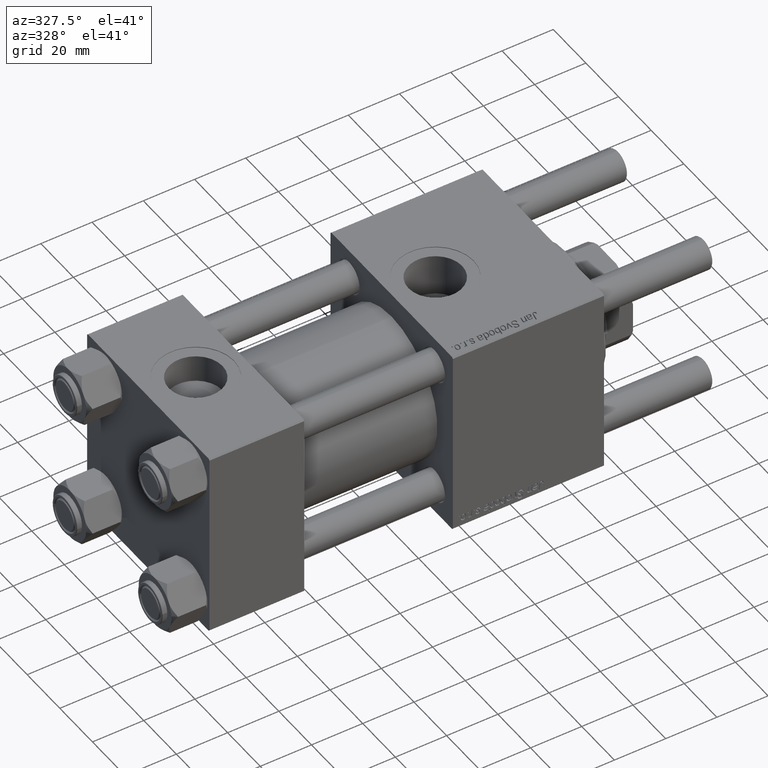
[diagram: clean part render]
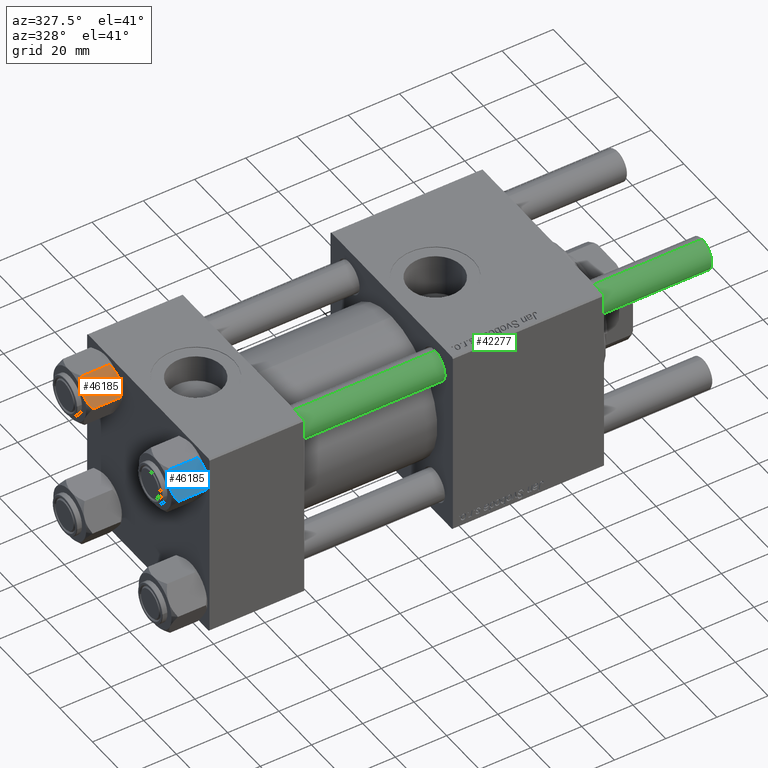
[diagram: same view with three faces highlighted in distinct colors, each labeled with its STEP entity id]
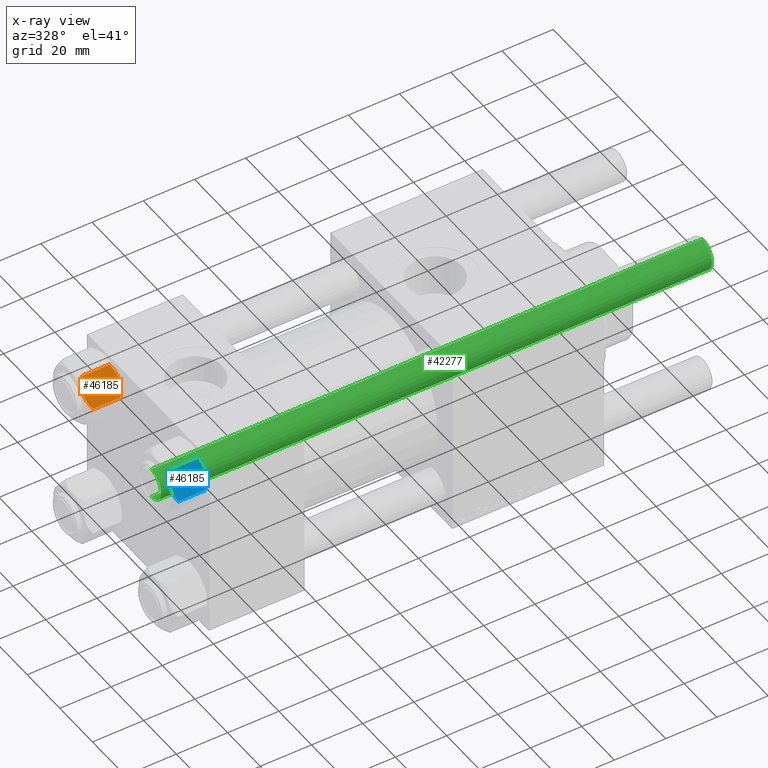
[diagram: x-ray of the same camera — body ghosted, the three highlighted faces saturated]
A machine part, auxiliary view with three faces highlighted in distinct colors.
The next image is the same camera in x-ray (body ghosted, the three faces saturated) — at least one of them is partly hidden behind the body in this view.
Their STEP definitions:

[orange] entity #46185 — the highlighted planar face has unit normal (0, 0.8198, -0.5726).
#839 = CARTESIAN_POINT ( 'NONE',  ( -6.731401448974990487, -8.467301068182912616, -13.28585617404753627 ) ) ;
#1386 = EDGE_CURVE ( 'NONE', #32281, #53331, #46654, .T. ) ;
#2322 = VERTEX_POINT ( 'NONE', #13940 ) ;
#4976 = CARTESIAN_POINT ( 'NONE',  ( -8.715000000000005187, -5.031607595987585668, -14.00000000000000000 ) ) ;
#6049 = EDGE_CURVE ( 'NONE', #29025, #39398, #32756, .T. ) ;
#8047 = DIRECTION ( 'NONE',  ( 0.8660254037844390407, 0.4999999999999995004, 0.000000000000000000 ) ) ;
#8597 = VECTOR ( 'NONE', #11919, 1000.000000000000000 ) ;
#10403 = CARTESIAN_POINT ( 'NONE',  ( -9.220295946303432189, -4.156409344131445138, -14.00000000000000711 ) ) ;
#11377 = CARTESIAN_POINT ( 'NONE',  ( -6.733375043383497349, -8.463882702393840773, -0.7114554706434500497 ) ) ;
#11919 = DIRECTION ( 'NONE',  ( -0.000000000000000000, -0.000000000000000000, 1.000000000000000000 ) ) ;
#12915 = EDGE_CURVE ( 'NONE', #53331, #2322, #45262, .T. ) ;
#13368 = CARTESIAN_POINT ( 'NONE',  ( -11.16445427487471598, -0.7890283410877912962, -1.101239082899529764 ) ) ;
#13940 = CARTESIAN_POINT ( 'NONE',  ( -8.715000000000005187, -5.031607595987585668, 0.000000000000000000 ) ) ;
#14861 = CARTESIAN_POINT ( 'NONE',  ( -7.455303369716807182, -7.213466161761382445, -13.69973261901325934 ) ) ;
#14946 = AXIS2_PLACEMENT_3D ( 'NONE', #47340, #8047, #43029 ) ;
#15559 = CARTESIAN_POINT ( 'NONE',  ( -10.69662495661650325, -1.599332489581326122, -13.28854452935654962 ) ) ;
#15969 = CARTESIAN_POINT ( 'NONE',  ( -7.713000053756306151, -6.767122412062949621, -0.1545239700039825748 ) ) ;
#17048 = VERTEX_POINT ( 'NONE', #23287 ) ;
#18800 = B_SPLINE_CURVE_WITH_KNOTS ( 'NONE', 3,
 ( #49694, #10403, #23595, #15559, #54826, #42221 ),
 .UNSPECIFIED., .F., .F.,
 ( 4, 2, 4 ),
 ( 0.006022845781655597648, 0.009013049135303643697, 0.01200325248895169061 ),
 .UNSPECIFIED. ) ;
#19437 = CARTESIAN_POINT ( 'NONE',  ( -6.265545725125286403, -9.274186850887383926, -12.89876091710047135 ) ) ;
#20519 = ORIENTED_EDGE ( 'NONE', *, *, #53286, .T. ) ;
#20565 = ORIENTED_EDGE ( 'NONE', *, *, #1386, .F. ) ;
#20952 = FACE_OUTER_BOUND ( 'NONE', #43835, .T. ) ;
#21109 = CARTESIAN_POINT ( 'NONE',  ( -11.61999999999999922, 6.288644352490894150E-15, -14.00000000000000000 ) ) ;
#22212 = CARTESIAN_POINT ( 'NONE',  ( -11.61999999999999922, 6.301834029662224111E-15, -1.556784808024812117 ) ) ;
#23287 = CARTESIAN_POINT ( 'NONE',  ( -5.810000000000000497, -10.06321519197517844, -1.556784808024815225 ) ) ;
#23394 = CARTESIAN_POINT ( 'NONE',  ( -10.69859855102501101, -1.595914123792257389, -0.7141438259524618415 ) ) ;
#23595 = CARTESIAN_POINT ( 'NONE',  ( -9.716999946243696229, -3.296092779912219495, -13.84547602999602134 ) ) ;
#24961 = ORIENTED_EDGE ( 'NONE', *, *, #28376, .F. ) ;
#26937 = CARTESIAN_POINT ( 'NONE',  ( -8.460569896449618099, -5.472293462311855095, -14.00000000000000355 ) ) ;
#27143 = CARTESIAN_POINT ( 'NONE',  ( -11.61999999999999922, 6.301834029662224111E-15, -1.556784808024812117 ) ) ;
#28376 = EDGE_CURVE ( 'NONE', #39398, #32281, #18800, .T. ) ;
#28870 = CARTESIAN_POINT ( 'NONE',  ( -6.265018354709778414, -9.275100283241449972, -1.101766453314953820 ) ) ;
#28872 = ORIENTED_EDGE ( 'NONE', *, *, #37620, .F. ) ;
#29025 = VERTEX_POINT ( 'NONE', #35103 ) ;
#29148 = CARTESIAN_POINT ( 'NONE',  ( -8.715000000000005187, -5.031607595987585668, 0.000000000000000000 ) ) ;
#29843 = PLANE ( 'NONE',  #14946 ) ;
#30865 = CARTESIAN_POINT ( 'NONE',  ( -9.729165168613651105, -3.275021996682077052, -0.1903979688073393906 ) ) ;
#31533 = CARTESIAN_POINT ( 'NONE',  ( -8.715000000000005187, -5.031607595987585668, -14.00000000000000000 ) ) ;
#32082 = CARTESIAN_POINT ( 'NONE',  ( -7.700834831386345058, -6.788193195293090731, -13.80960203119265906 ) ) ;
#32281 = VERTEX_POINT ( 'NONE', #56372 ) ;
#32756 = B_SPLINE_CURVE_WITH_KNOTS ( 'NONE', 3,
 ( #40960, #19437, #839, #14861, #32082, #50131, #26937, #31533 ),
 .UNSPECIFIED., .F., .F.,
 ( 4, 2, 2, 4 ),
 ( 2.544312114906334931E-07, 0.003011550106433545128, 0.004517197944044571388, 0.006022845781655597648 ),
 .UNSPECIFIED. ) ;
#33770 = VECTOR ( 'NONE', #37465, 1000.000000000000000 ) ;
#35103 = CARTESIAN_POINT ( 'NONE',  ( -5.810000000000000497, -10.06321519197517844, -12.44321519197518455 ) ) ;
#37450 = B_SPLINE_CURVE_WITH_KNOTS ( 'NONE', 3,
 ( #29148, #42057, #15969, #11377, #28870, #51225 ),
 .UNSPECIFIED., .F., .F.,
 ( 4, 2, 4 ),
 ( 0.006022845781655587240, 0.009013049135303635023, 0.01200325248895168541 ),
 .UNSPECIFIED. ) ;
#37465 = DIRECTION ( 'NONE',  ( -0.000000000000000000, -0.000000000000000000, 1.000000000000000000 ) ) ;
#37620 = EDGE_CURVE ( 'NONE', #2322, #17048, #37450, .T. ) ;
#39398 = VERTEX_POINT ( 'NONE', #4976 ) ;
#39745 = CARTESIAN_POINT ( 'NONE',  ( -9.974696630283188981, -2.849749030213787560, -0.3002673809867339449 ) ) ;
#40960 = CARTESIAN_POINT ( 'NONE',  ( -5.810000000000000497, -10.06321519197517844, -12.44321519197518455 ) ) ;
#42057 = CARTESIAN_POINT ( 'NONE',  ( -8.209704053696569304, -5.906805847843719981, 4.553649124439113890E-15 ) ) ;
#42221 = CARTESIAN_POINT ( 'NONE',  ( -11.61999999999999922, 6.270720075510426383E-15, -12.44321519197518811 ) ) ;
#43029 = DIRECTION ( 'NONE',  ( -0.4999999999999994449, 0.8660254037844389297, 0.000000000000000000 ) ) ;
#43835 = EDGE_LOOP ( 'NONE', ( #55655, #20519, #28872, #53303, #20565, #24961 ) ) ;
#44350 = CARTESIAN_POINT ( 'NONE',  ( -9.227666995912100489, -4.143642311704119230, -0.03994118060690584476 ) ) ;
#45262 = B_SPLINE_CURVE_WITH_KNOTS ( 'NONE', 3,
 ( #27143, #13368, #23394, #39745, #30865, #44350, #52926, #48357 ),
 .UNSPECIFIED., .F., .F.,
 ( 4, 2, 2, 4 ),
 ( 2.544312114899214560E-07, 0.003011550106433539924, 0.004517197944044563582, 0.006022845781655587240 ),
 .UNSPECIFIED. ) ;
#46185 = ADVANCED_FACE ( 'NONE', ( #20952 ), #29843, .F. ) ;
#46654 = LINE ( 'NONE', #21109, #33770 ) ;
#47340 = CARTESIAN_POINT ( 'NONE',  ( -5.810000000000000497, -10.06321519197517844, -14.00000000000000000 ) ) ;
#48357 = CARTESIAN_POINT ( 'NONE',  ( -8.715000000000005187, -5.031607595987585668, 0.000000000000000000 ) ) ;
#49694 = CARTESIAN_POINT ( 'NONE',  ( -8.715000000000005187, -5.031607595987585668, -14.00000000000000000 ) ) ;
#50131 = CARTESIAN_POINT ( 'NONE',  ( -8.202333004087901003, -5.919572880271046778, -13.96005881939309390 ) ) ;
#51205 = CARTESIAN_POINT ( 'NONE',  ( -5.810000000000000497, -10.06321519197517844, -14.00000000000000000 ) ) ;
#51225 = CARTESIAN_POINT ( 'NONE',  ( -5.810000000000000497, -10.06321519197517844, -1.556784808024815225 ) ) ;
#52926 = CARTESIAN_POINT ( 'NONE',  ( -8.969430103550381617, -4.590921729663306472, 4.863663183134191758E-15 ) ) ;
#53286 = EDGE_CURVE ( 'NONE', #29025, #17048, #55505, .T. ) ;
#53303 = ORIENTED_EDGE ( 'NONE', *, *, #12915, .F. ) ;
#53331 = VERTEX_POINT ( 'NONE', #22212 ) ;
#54826 = CARTESIAN_POINT ( 'NONE',  ( -11.16498164529022041, -0.7881149087337220305, -12.89823354668505040 ) ) ;
#55505 = LINE ( 'NONE', #51205, #8597 ) ;
#55655 = ORIENTED_EDGE ( 'NONE', *, *, #6049, .F. ) ;
#56372 = CARTESIAN_POINT ( 'NONE',  ( -11.61999999999999922, 6.270720075510426383E-15, -12.44321519197518811 ) ) ;

[blue] entity #46185 — the highlighted planar face has unit normal (-0, 0.9058, -0.4237).
#839 = CARTESIAN_POINT ( 'NONE',  ( -6.731401448974990487, -8.467301068182912616, -13.28585617404753627 ) ) ;
#1386 = EDGE_CURVE ( 'NONE', #32281, #53331, #46654, .T. ) ;
#2322 = VERTEX_POINT ( 'NONE', #13940 ) ;
#4976 = CARTESIAN_POINT ( 'NONE',  ( -8.715000000000005187, -5.031607595987585668, -14.00000000000000000 ) ) ;
#6049 = EDGE_CURVE ( 'NONE', #29025, #39398, #32756, .T. ) ;
#8047 = DIRECTION ( 'NONE',  ( 0.8660254037844390407, 0.4999999999999995004, 0.000000000000000000 ) ) ;
#8597 = VECTOR ( 'NONE', #11919, 1000.000000000000000 ) ;
#10403 = CARTESIAN_POINT ( 'NONE',  ( -9.220295946303432189, -4.156409344131445138, -14.00000000000000711 ) ) ;
#11377 = CARTESIAN_POINT ( 'NONE',  ( -6.733375043383497349, -8.463882702393840773, -0.7114554706434500497 ) ) ;
#11919 = DIRECTION ( 'NONE',  ( -0.000000000000000000, -0.000000000000000000, 1.000000000000000000 ) ) ;
#12915 = EDGE_CURVE ( 'NONE', #53331, #2322, #45262, .T. ) ;
#13368 = CARTESIAN_POINT ( 'NONE',  ( -11.16445427487471598, -0.7890283410877912962, -1.101239082899529764 ) ) ;
#13940 = CARTESIAN_POINT ( 'NONE',  ( -8.715000000000005187, -5.031607595987585668, 0.000000000000000000 ) ) ;
#14861 = CARTESIAN_POINT ( 'NONE',  ( -7.455303369716807182, -7.213466161761382445, -13.69973261901325934 ) ) ;
#14946 = AXIS2_PLACEMENT_3D ( 'NONE', #47340, #8047, #43029 ) ;
#15559 = CARTESIAN_POINT ( 'NONE',  ( -10.69662495661650325, -1.599332489581326122, -13.28854452935654962 ) ) ;
#15969 = CARTESIAN_POINT ( 'NONE',  ( -7.713000053756306151, -6.767122412062949621, -0.1545239700039825748 ) ) ;
#17048 = VERTEX_POINT ( 'NONE', #23287 ) ;
#18800 = B_SPLINE_CURVE_WITH_KNOTS ( 'NONE', 3,
 ( #49694, #10403, #23595, #15559, #54826, #42221 ),
 .UNSPECIFIED., .F., .F.,
 ( 4, 2, 4 ),
 ( 0.006022845781655597648, 0.009013049135303643697, 0.01200325248895169061 ),
 .UNSPECIFIED. ) ;
#19437 = CARTESIAN_POINT ( 'NONE',  ( -6.265545725125286403, -9.274186850887383926, -12.89876091710047135 ) ) ;
#20519 = ORIENTED_EDGE ( 'NONE', *, *, #53286, .T. ) ;
#20565 = ORIENTED_EDGE ( 'NONE', *, *, #1386, .F. ) ;
#20952 = FACE_OUTER_BOUND ( 'NONE', #43835, .T. ) ;
#21109 = CARTESIAN_POINT ( 'NONE',  ( -11.61999999999999922, 6.288644352490894150E-15, -14.00000000000000000 ) ) ;
#22212 = CARTESIAN_POINT ( 'NONE',  ( -11.61999999999999922, 6.301834029662224111E-15, -1.556784808024812117 ) ) ;
#23287 = CARTESIAN_POINT ( 'NONE',  ( -5.810000000000000497, -10.06321519197517844, -1.556784808024815225 ) ) ;
#23394 = CARTESIAN_POINT ( 'NONE',  ( -10.69859855102501101, -1.595914123792257389, -0.7141438259524618415 ) ) ;
#23595 = CARTESIAN_POINT ( 'NONE',  ( -9.716999946243696229, -3.296092779912219495, -13.84547602999602134 ) ) ;
#24961 = ORIENTED_EDGE ( 'NONE', *, *, #28376, .F. ) ;
#26937 = CARTESIAN_POINT ( 'NONE',  ( -8.460569896449618099, -5.472293462311855095, -14.00000000000000355 ) ) ;
#27143 = CARTESIAN_POINT ( 'NONE',  ( -11.61999999999999922, 6.301834029662224111E-15, -1.556784808024812117 ) ) ;
#28376 = EDGE_CURVE ( 'NONE', #39398, #32281, #18800, .T. ) ;
#28870 = CARTESIAN_POINT ( 'NONE',  ( -6.265018354709778414, -9.275100283241449972, -1.101766453314953820 ) ) ;
#28872 = ORIENTED_EDGE ( 'NONE', *, *, #37620, .F. ) ;
#29025 = VERTEX_POINT ( 'NONE', #35103 ) ;
#29148 = CARTESIAN_POINT ( 'NONE',  ( -8.715000000000005187, -5.031607595987585668, 0.000000000000000000 ) ) ;
#29843 = PLANE ( 'NONE',  #14946 ) ;
#30865 = CARTESIAN_POINT ( 'NONE',  ( -9.729165168613651105, -3.275021996682077052, -0.1903979688073393906 ) ) ;
#31533 = CARTESIAN_POINT ( 'NONE',  ( -8.715000000000005187, -5.031607595987585668, -14.00000000000000000 ) ) ;
#32082 = CARTESIAN_POINT ( 'NONE',  ( -7.700834831386345058, -6.788193195293090731, -13.80960203119265906 ) ) ;
#32281 = VERTEX_POINT ( 'NONE', #56372 ) ;
#32756 = B_SPLINE_CURVE_WITH_KNOTS ( 'NONE', 3,
 ( #40960, #19437, #839, #14861, #32082, #50131, #26937, #31533 ),
 .UNSPECIFIED., .F., .F.,
 ( 4, 2, 2, 4 ),
 ( 2.544312114906334931E-07, 0.003011550106433545128, 0.004517197944044571388, 0.006022845781655597648 ),
 .UNSPECIFIED. ) ;
#33770 = VECTOR ( 'NONE', #37465, 1000.000000000000000 ) ;
#35103 = CARTESIAN_POINT ( 'NONE',  ( -5.810000000000000497, -10.06321519197517844, -12.44321519197518455 ) ) ;
#37450 = B_SPLINE_CURVE_WITH_KNOTS ( 'NONE', 3,
 ( #29148, #42057, #15969, #11377, #28870, #51225 ),
 .UNSPECIFIED., .F., .F.,
 ( 4, 2, 4 ),
 ( 0.006022845781655587240, 0.009013049135303635023, 0.01200325248895168541 ),
 .UNSPECIFIED. ) ;
#37465 = DIRECTION ( 'NONE',  ( -0.000000000000000000, -0.000000000000000000, 1.000000000000000000 ) ) ;
#37620 = EDGE_CURVE ( 'NONE', #2322, #17048, #37450, .T. ) ;
#39398 = VERTEX_POINT ( 'NONE', #4976 ) ;
#39745 = CARTESIAN_POINT ( 'NONE',  ( -9.974696630283188981, -2.849749030213787560, -0.3002673809867339449 ) ) ;
#40960 = CARTESIAN_POINT ( 'NONE',  ( -5.810000000000000497, -10.06321519197517844, -12.44321519197518455 ) ) ;
#42057 = CARTESIAN_POINT ( 'NONE',  ( -8.209704053696569304, -5.906805847843719981, 4.553649124439113890E-15 ) ) ;
#42221 = CARTESIAN_POINT ( 'NONE',  ( -11.61999999999999922, 6.270720075510426383E-15, -12.44321519197518811 ) ) ;
#43029 = DIRECTION ( 'NONE',  ( -0.4999999999999994449, 0.8660254037844389297, 0.000000000000000000 ) ) ;
#43835 = EDGE_LOOP ( 'NONE', ( #55655, #20519, #28872, #53303, #20565, #24961 ) ) ;
#44350 = CARTESIAN_POINT ( 'NONE',  ( -9.227666995912100489, -4.143642311704119230, -0.03994118060690584476 ) ) ;
#45262 = B_SPLINE_CURVE_WITH_KNOTS ( 'NONE', 3,
 ( #27143, #13368, #23394, #39745, #30865, #44350, #52926, #48357 ),
 .UNSPECIFIED., .F., .F.,
 ( 4, 2, 2, 4 ),
 ( 2.544312114899214560E-07, 0.003011550106433539924, 0.004517197944044563582, 0.006022845781655587240 ),
 .UNSPECIFIED. ) ;
#46185 = ADVANCED_FACE ( 'NONE', ( #20952 ), #29843, .F. ) ;
#46654 = LINE ( 'NONE', #21109, #33770 ) ;
#47340 = CARTESIAN_POINT ( 'NONE',  ( -5.810000000000000497, -10.06321519197517844, -14.00000000000000000 ) ) ;
#48357 = CARTESIAN_POINT ( 'NONE',  ( -8.715000000000005187, -5.031607595987585668, 0.000000000000000000 ) ) ;
#49694 = CARTESIAN_POINT ( 'NONE',  ( -8.715000000000005187, -5.031607595987585668, -14.00000000000000000 ) ) ;
#50131 = CARTESIAN_POINT ( 'NONE',  ( -8.202333004087901003, -5.919572880271046778, -13.96005881939309390 ) ) ;
#51205 = CARTESIAN_POINT ( 'NONE',  ( -5.810000000000000497, -10.06321519197517844, -14.00000000000000000 ) ) ;
#51225 = CARTESIAN_POINT ( 'NONE',  ( -5.810000000000000497, -10.06321519197517844, -1.556784808024815225 ) ) ;
#52926 = CARTESIAN_POINT ( 'NONE',  ( -8.969430103550381617, -4.590921729663306472, 4.863663183134191758E-15 ) ) ;
#53286 = EDGE_CURVE ( 'NONE', #29025, #17048, #55505, .T. ) ;
#53303 = ORIENTED_EDGE ( 'NONE', *, *, #12915, .F. ) ;
#53331 = VERTEX_POINT ( 'NONE', #22212 ) ;
#54826 = CARTESIAN_POINT ( 'NONE',  ( -11.16498164529022041, -0.7881149087337220305, -12.89823354668505040 ) ) ;
#55505 = LINE ( 'NONE', #51205, #8597 ) ;
#55655 = ORIENTED_EDGE ( 'NONE', *, *, #6049, .F. ) ;
#56372 = CARTESIAN_POINT ( 'NONE',  ( -11.61999999999999922, 6.270720075510426383E-15, -12.44321519197518811 ) ) ;

[green] entity #42277 — the highlighted cylindrical surface (edge-blend (fillet) strip) has radius 6 mm, axis along (-1, 0, -0).
#1003 = CARTESIAN_POINT ( 'NONE',  ( 0.000000000000000000, 0.000000000000000000, 216.0000000000000000 ) ) ;
#1130 = DIRECTION ( 'NONE',  ( -0.000000000000000000, -0.000000000000000000, -1.000000000000000000 ) ) ;
#2684 = LINE ( 'NONE', #6709, #5029 ) ;
#4013 = CIRCLE ( 'NONE', #13131, 6.000000000000000888 ) ;
#4758 = DIRECTION ( 'NONE',  ( 1.000000000000000000, 0.000000000000000000, 0.000000000000000000 ) ) ;
#5029 = VECTOR ( 'NONE', #11870, 1000.000000000000000 ) ;
#5579 = DIRECTION ( 'NONE',  ( -1.000000000000000000, 0.000000000000000000, 0.000000000000000000 ) ) ;
#6709 = CARTESIAN_POINT ( 'NONE',  ( -6.000000000000000888, 0.000000000000000000, 216.0000000000000000 ) ) ;
#8490 = VERTEX_POINT ( 'NONE', #31950 ) ;
#8649 = VERTEX_POINT ( 'NONE', #13251 ) ;
#9706 = VERTEX_POINT ( 'NONE', #36447 ) ;
#9886 = FACE_OUTER_BOUND ( 'NONE', #19421, .T. ) ;
#10654 = DIRECTION ( 'NONE',  ( 0.000000000000000000, 0.000000000000000000, -1.000000000000000000 ) ) ;
#11870 = DIRECTION ( 'NONE',  ( -0.000000000000000000, -0.000000000000000000, -1.000000000000000000 ) ) ;
#12300 = ORIENTED_EDGE ( 'NONE', *, *, #48202, .T. ) ;
#13131 = AXIS2_PLACEMENT_3D ( 'NONE', #54225, #10654, #44530 ) ;
#13251 = CARTESIAN_POINT ( 'NONE',  ( 6.000000000000000888, 7.347880794884120722E-16, 215.5000000000000284 ) ) ;
#19421 = EDGE_LOOP ( 'NONE', ( #12300, #53558, #49684, #19759 ) ) ;
#19759 = ORIENTED_EDGE ( 'NONE', *, *, #55645, .F. ) ;
#22618 = CIRCLE ( 'NONE', #26245, 6.000000000000000888 ) ;
#23830 = VECTOR ( 'NONE', #1130, 1000.000000000000000 ) ;
#26245 = AXIS2_PLACEMENT_3D ( 'NONE', #44056, #52930, #4758 ) ;
#31242 = EDGE_CURVE ( 'NONE', #8490, #46525, #22618, .T. ) ;
#31950 = CARTESIAN_POINT ( 'NONE',  ( 6.000000000000000888, 7.347880794884120722E-16, 0.5000000000000004441 ) ) ;
#36262 = DIRECTION ( 'NONE',  ( -0.000000000000000000, -0.000000000000000000, -1.000000000000000000 ) ) ;
#36447 = CARTESIAN_POINT ( 'NONE',  ( -6.000000000000000888, 0.000000000000000000, 215.5000000000000284 ) ) ;
#36522 = EDGE_CURVE ( 'NONE', #8649, #8490, #52744, .T. ) ;
#39712 = CYLINDRICAL_SURFACE ( 'NONE', #47775, 6.000000000000000888 ) ;
#40702 = CARTESIAN_POINT ( 'NONE',  ( 6.000000000000000888, 7.347880794884120722E-16, 216.0000000000000000 ) ) ;
#42277 = ADVANCED_FACE ( 'NONE', ( #9886 ), #39712, .T. ) ;
#44056 = CARTESIAN_POINT ( 'NONE',  ( 0.000000000000000000, 0.000000000000000000, 0.5000000000000004441 ) ) ;
#44530 = DIRECTION ( 'NONE',  ( 1.000000000000000000, 0.000000000000000000, 0.000000000000000000 ) ) ;
#46525 = VERTEX_POINT ( 'NONE', #47823 ) ;
#47775 = AXIS2_PLACEMENT_3D ( 'NONE', #1003, #36262, #5579 ) ;
#47823 = CARTESIAN_POINT ( 'NONE',  ( -6.000000000000000888, 0.000000000000000000, 0.5000000000000004441 ) ) ;
#48202 = EDGE_CURVE ( 'NONE', #9706, #8649, #4013, .T. ) ;
#49684 = ORIENTED_EDGE ( 'NONE', *, *, #31242, .T. ) ;
#52744 = LINE ( 'NONE', #40702, #23830 ) ;
#52930 = DIRECTION ( 'NONE',  ( -0.000000000000000000, -0.000000000000000000, 1.000000000000000000 ) ) ;
#53558 = ORIENTED_EDGE ( 'NONE', *, *, #36522, .T. ) ;
#54225 = CARTESIAN_POINT ( 'NONE',  ( 0.000000000000000000, 0.000000000000000000, 215.5000000000000284 ) ) ;
#55645 = EDGE_CURVE ( 'NONE', #9706, #46525, #2684, .T. ) ;